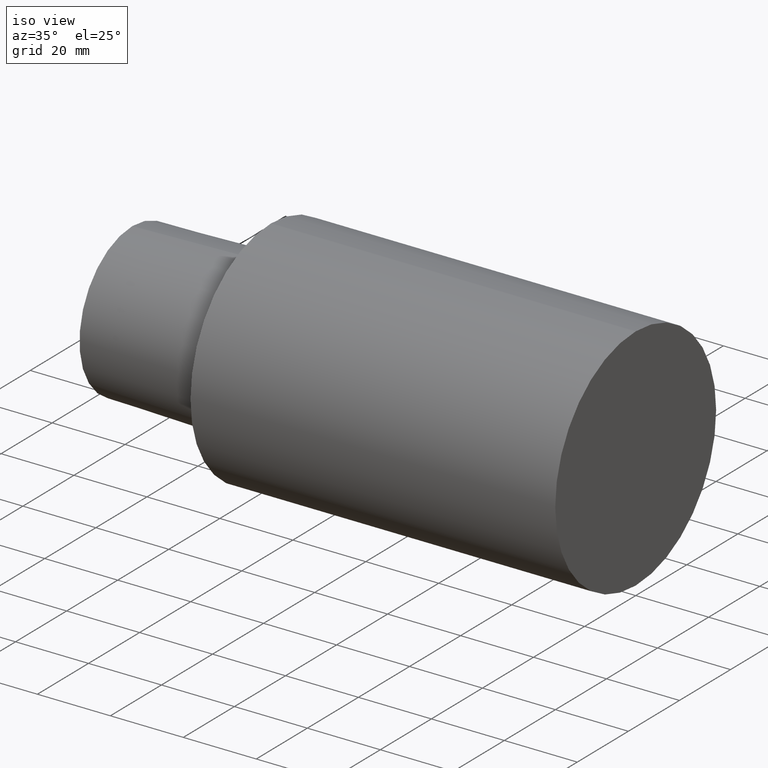
[diagram: clean part render]
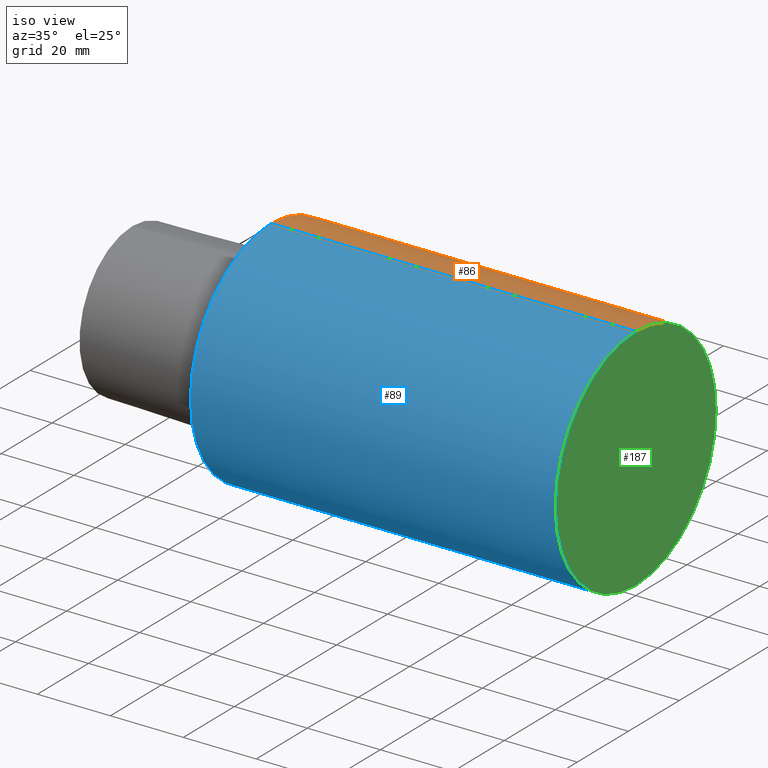
[diagram: same view with three faces highlighted in distinct colors, each labeled with its STEP entity id]
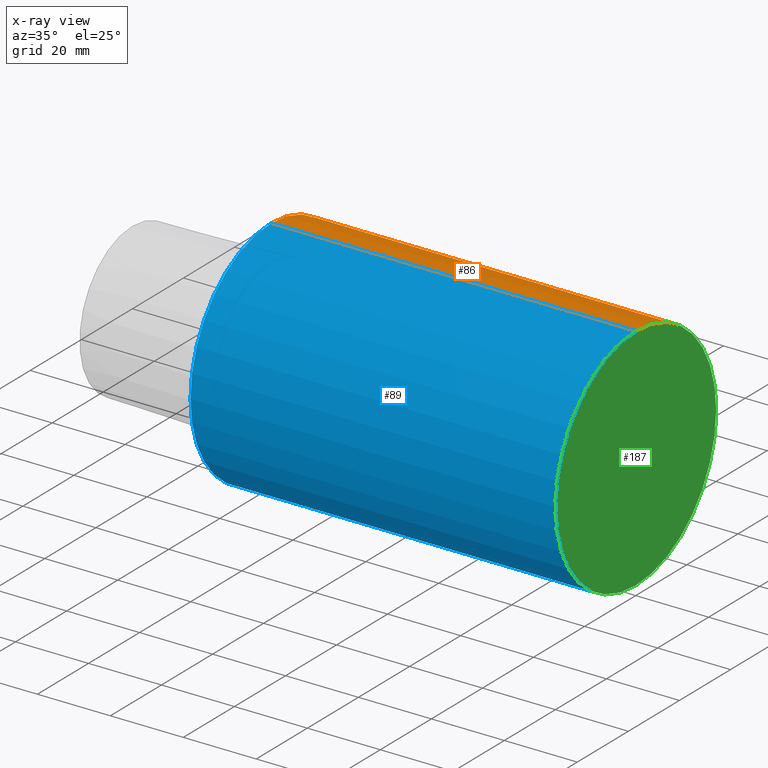
[diagram: x-ray of the same camera — body ghosted, the three highlighted faces saturated]
A machine part, iso view with three faces highlighted in distinct colors.
The next image is the same camera in x-ray (body ghosted, the three faces saturated) — at least one of them is partly hidden behind the body in this view.
Their STEP definitions:

[orange] entity #86 — the highlighted cylindrical surface (partial cylindrical patch) has radius 31.5 mm, axis along (-1, 0, 0).
#20 = EDGE_LOOP ( 'NONE', ( #98, #196, #140, #236 ) ) ;
#27 = DIRECTION ( 'NONE',  ( -1.000000000000000000, 0.000000000000000000, 0.000000000000000000 ) ) ;
#32 = VERTEX_POINT ( 'NONE', #53 ) ;
#37 = VERTEX_POINT ( 'NONE', #134 ) ;
#53 = CARTESIAN_POINT ( 'NONE',  ( 99.99999989799999867, 0.000000000000000000, 31.49999996787000001 ) ) ;
#64 = DIRECTION ( 'NONE',  ( -1.000000000000000000, 0.000000000000000000, 0.000000000000000000 ) ) ;
#70 = LINE ( 'NONE', #241, #164 ) ;
#73 = CIRCLE ( 'NONE', #90, 31.49999996787000001 ) ;
#74 = CYLINDRICAL_SURFACE ( 'NONE', #108, 31.49999996787000001 ) ;
#79 = VERTEX_POINT ( 'NONE', #167 ) ;
#86 = ADVANCED_FACE ( 'NONE', ( #251 ), #74, .T. ) ;
#87 = VECTOR ( 'NONE', #64, 1000.000000000000000 ) ;
#88 = DIRECTION ( 'NONE',  ( 0.000000000000000000, 0.000000000000000000, 1.000000000000000000 ) ) ;
#90 = AXIS2_PLACEMENT_3D ( 'NONE', #203, #27, #122 ) ;
#91 = EDGE_CURVE ( 'NONE', #37, #115, #144, .T. ) ;
#95 = DIRECTION ( 'NONE',  ( 0.000000000000000000, 0.000000000000000000, 1.000000000000000000 ) ) ;
#98 = ORIENTED_EDGE ( 'NONE', *, *, #160, .T. ) ;
#108 = AXIS2_PLACEMENT_3D ( 'NONE', #233, #190, #95 ) ;
#115 = VERTEX_POINT ( 'NONE', #198 ) ;
#122 = DIRECTION ( 'NONE',  ( 0.000000000000000000, 0.000000000000000000, 1.000000000000000000 ) ) ;
#134 = CARTESIAN_POINT ( 'NONE',  ( 99.99999989799999867, 3.857637413379370248E-15, -31.49999996787000001 ) ) ;
#140 = ORIENTED_EDGE ( 'NONE', *, *, #226, .F. ) ;
#144 = LINE ( 'NONE', #176, #87 ) ;
#148 = DIRECTION ( 'NONE',  ( -1.000000000000000000, 0.000000000000000000, 0.000000000000000000 ) ) ;
#160 = EDGE_CURVE ( 'NONE', #32, #37, #73, .T. ) ;
#164 = VECTOR ( 'NONE', #148, 1000.000000000000000 ) ;
#167 = CARTESIAN_POINT ( 'NONE',  ( 0.000000000000000000, 0.000000000000000000, 31.49999996787000001 ) ) ;
#176 = CARTESIAN_POINT ( 'NONE',  ( -37.99999996124000035, 3.857637413379370248E-15, -31.49999996787000001 ) ) ;
#177 = AXIS2_PLACEMENT_3D ( 'NONE', #204, #245, #88 ) ;
#190 = DIRECTION ( 'NONE',  ( -1.000000000000000000, 0.000000000000000000, 0.000000000000000000 ) ) ;
#196 = ORIENTED_EDGE ( 'NONE', *, *, #91, .T. ) ;
#198 = CARTESIAN_POINT ( 'NONE',  ( 0.000000000000000000, 3.857637413379370248E-15, -31.49999996787000001 ) ) ;
#203 = CARTESIAN_POINT ( 'NONE',  ( 99.99999989799999867, 0.000000000000000000, 0.000000000000000000 ) ) ;
#204 = CARTESIAN_POINT ( 'NONE',  ( 0.000000000000000000, 0.000000000000000000, 0.000000000000000000 ) ) ;
#208 = CIRCLE ( 'NONE', #177, 31.49999996787000001 ) ;
#211 = EDGE_CURVE ( 'NONE', #32, #79, #70, .T. ) ;
#226 = EDGE_CURVE ( 'NONE', #79, #115, #208, .T. ) ;
#233 = CARTESIAN_POINT ( 'NONE',  ( -37.99999996124000035, 0.000000000000000000, 0.000000000000000000 ) ) ;
#236 = ORIENTED_EDGE ( 'NONE', *, *, #211, .F. ) ;
#241 = CARTESIAN_POINT ( 'NONE',  ( -37.99999996124000035, 0.000000000000000000, 31.49999996787000001 ) ) ;
#245 = DIRECTION ( 'NONE',  ( -1.000000000000000000, 0.000000000000000000, 0.000000000000000000 ) ) ;
#251 = FACE_OUTER_BOUND ( 'NONE', #20, .T. ) ;

[blue] entity #89 — the highlighted cylindrical surface (partial cylindrical patch) has radius 31.5 mm, axis along (-1, 0, 0).
#3 = DIRECTION ( 'NONE',  ( 0.000000000000000000, 0.000000000000000000, 1.000000000000000000 ) ) ;
#32 = VERTEX_POINT ( 'NONE', #53 ) ;
#37 = VERTEX_POINT ( 'NONE', #134 ) ;
#40 = ORIENTED_EDGE ( 'NONE', *, *, #184, .F. ) ;
#43 = CARTESIAN_POINT ( 'NONE',  ( -37.99999996124000035, 0.000000000000000000, 0.000000000000000000 ) ) ;
#51 = AXIS2_PLACEMENT_3D ( 'NONE', #100, #212, #189 ) ;
#53 = CARTESIAN_POINT ( 'NONE',  ( 99.99999989799999867, 0.000000000000000000, 31.49999996787000001 ) ) ;
#64 = DIRECTION ( 'NONE',  ( -1.000000000000000000, 0.000000000000000000, 0.000000000000000000 ) ) ;
#66 = EDGE_CURVE ( 'NONE', #37, #32, #229, .T. ) ;
#67 = AXIS2_PLACEMENT_3D ( 'NONE', #43, #227, #125 ) ;
#70 = LINE ( 'NONE', #241, #164 ) ;
#77 = ORIENTED_EDGE ( 'NONE', *, *, #91, .F. ) ;
#79 = VERTEX_POINT ( 'NONE', #167 ) ;
#87 = VECTOR ( 'NONE', #64, 1000.000000000000000 ) ;
#89 = ADVANCED_FACE ( 'NONE', ( #169 ), #240, .T. ) ;
#91 = EDGE_CURVE ( 'NONE', #37, #115, #144, .T. ) ;
#100 = CARTESIAN_POINT ( 'NONE',  ( 99.99999989799999867, 0.000000000000000000, 0.000000000000000000 ) ) ;
#103 = CIRCLE ( 'NONE', #194, 31.49999996787000001 ) ;
#115 = VERTEX_POINT ( 'NONE', #198 ) ;
#125 = DIRECTION ( 'NONE',  ( 0.000000000000000000, 0.000000000000000000, 1.000000000000000000 ) ) ;
#134 = CARTESIAN_POINT ( 'NONE',  ( 99.99999989799999867, 3.857637413379370248E-15, -31.49999996787000001 ) ) ;
#143 = CARTESIAN_POINT ( 'NONE',  ( 0.000000000000000000, 0.000000000000000000, 0.000000000000000000 ) ) ;
#144 = LINE ( 'NONE', #176, #87 ) ;
#148 = DIRECTION ( 'NONE',  ( -1.000000000000000000, 0.000000000000000000, 0.000000000000000000 ) ) ;
#154 = ORIENTED_EDGE ( 'NONE', *, *, #211, .T. ) ;
#164 = VECTOR ( 'NONE', #148, 1000.000000000000000 ) ;
#167 = CARTESIAN_POINT ( 'NONE',  ( 0.000000000000000000, 0.000000000000000000, 31.49999996787000001 ) ) ;
#169 = FACE_OUTER_BOUND ( 'NONE', #253, .T. ) ;
#176 = CARTESIAN_POINT ( 'NONE',  ( -37.99999996124000035, 3.857637413379370248E-15, -31.49999996787000001 ) ) ;
#184 = EDGE_CURVE ( 'NONE', #115, #79, #103, .T. ) ;
#189 = DIRECTION ( 'NONE',  ( 0.000000000000000000, 0.000000000000000000, 1.000000000000000000 ) ) ;
#194 = AXIS2_PLACEMENT_3D ( 'NONE', #143, #223, #3 ) ;
#198 = CARTESIAN_POINT ( 'NONE',  ( 0.000000000000000000, 3.857637413379370248E-15, -31.49999996787000001 ) ) ;
#211 = EDGE_CURVE ( 'NONE', #32, #79, #70, .T. ) ;
#212 = DIRECTION ( 'NONE',  ( -1.000000000000000000, 0.000000000000000000, 0.000000000000000000 ) ) ;
#223 = DIRECTION ( 'NONE',  ( -1.000000000000000000, 0.000000000000000000, 0.000000000000000000 ) ) ;
#227 = DIRECTION ( 'NONE',  ( -1.000000000000000000, 0.000000000000000000, 0.000000000000000000 ) ) ;
#229 = CIRCLE ( 'NONE', #51, 31.49999996787000001 ) ;
#240 = CYLINDRICAL_SURFACE ( 'NONE', #67, 31.49999996787000001 ) ;
#241 = CARTESIAN_POINT ( 'NONE',  ( -37.99999996124000035, 0.000000000000000000, 31.49999996787000001 ) ) ;
#252 = ORIENTED_EDGE ( 'NONE', *, *, #66, .T. ) ;
#253 = EDGE_LOOP ( 'NONE', ( #77, #252, #154, #40 ) ) ;

[green] entity #187 — the highlighted planar face has unit normal (-1, 0, 0).
#27 = DIRECTION ( 'NONE',  ( -1.000000000000000000, 0.000000000000000000, 0.000000000000000000 ) ) ;
#32 = VERTEX_POINT ( 'NONE', #53 ) ;
#35 = ORIENTED_EDGE ( 'NONE', *, *, #66, .F. ) ;
#37 = VERTEX_POINT ( 'NONE', #134 ) ;
#45 = DIRECTION ( 'NONE',  ( -1.000000000000000000, 0.000000000000000000, 0.000000000000000000 ) ) ;
#51 = AXIS2_PLACEMENT_3D ( 'NONE', #100, #212, #189 ) ;
#53 = CARTESIAN_POINT ( 'NONE',  ( 99.99999989799999867, 0.000000000000000000, 31.49999996787000001 ) ) ;
#66 = EDGE_CURVE ( 'NONE', #37, #32, #229, .T. ) ;
#73 = CIRCLE ( 'NONE', #90, 31.49999996787000001 ) ;
#80 = EDGE_LOOP ( 'NONE', ( #93, #35 ) ) ;
#84 = FACE_OUTER_BOUND ( 'NONE', #80, .T. ) ;
#90 = AXIS2_PLACEMENT_3D ( 'NONE', #203, #27, #122 ) ;
#93 = ORIENTED_EDGE ( 'NONE', *, *, #160, .F. ) ;
#100 = CARTESIAN_POINT ( 'NONE',  ( 99.99999989799999867, 0.000000000000000000, 0.000000000000000000 ) ) ;
#109 = DIRECTION ( 'NONE',  ( 0.000000000000000000, 0.000000000000000000, 1.000000000000000000 ) ) ;
#119 = AXIS2_PLACEMENT_3D ( 'NONE', #246, #45, #109 ) ;
#122 = DIRECTION ( 'NONE',  ( 0.000000000000000000, 0.000000000000000000, 1.000000000000000000 ) ) ;
#134 = CARTESIAN_POINT ( 'NONE',  ( 99.99999989799999867, 3.857637413379370248E-15, -31.49999996787000001 ) ) ;
#160 = EDGE_CURVE ( 'NONE', #32, #37, #73, .T. ) ;
#181 = PLANE ( 'NONE',  #119 ) ;
#187 = ADVANCED_FACE ( 'NONE', ( #84 ), #181, .F. ) ;
#189 = DIRECTION ( 'NONE',  ( 0.000000000000000000, 0.000000000000000000, 1.000000000000000000 ) ) ;
#203 = CARTESIAN_POINT ( 'NONE',  ( 99.99999989799999867, 0.000000000000000000, 0.000000000000000000 ) ) ;
#212 = DIRECTION ( 'NONE',  ( -1.000000000000000000, 0.000000000000000000, 0.000000000000000000 ) ) ;
#229 = CIRCLE ( 'NONE', #51, 31.49999996787000001 ) ;
#246 = CARTESIAN_POINT ( 'NONE',  ( 99.99999989799999867, 0.000000000000000000, 0.000000000000000000 ) ) ;